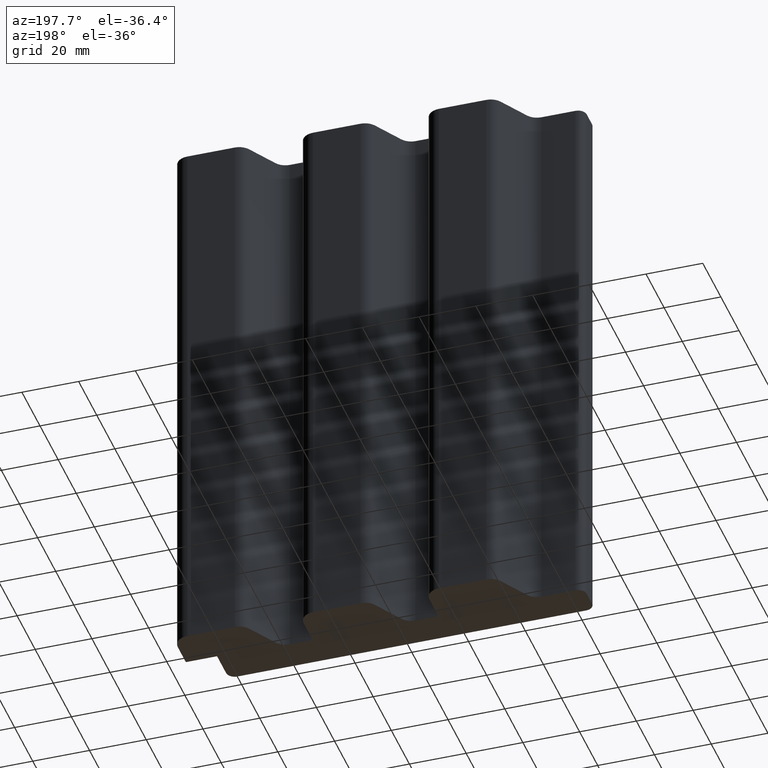
[diagram: clean part render]
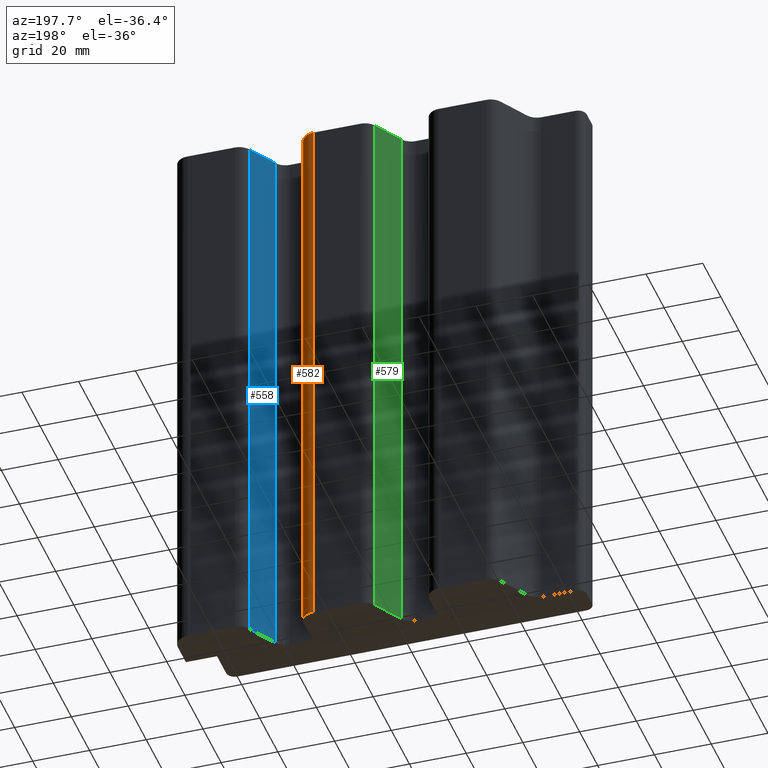
[diagram: same view with three faces highlighted in distinct colors, each labeled with its STEP entity id]
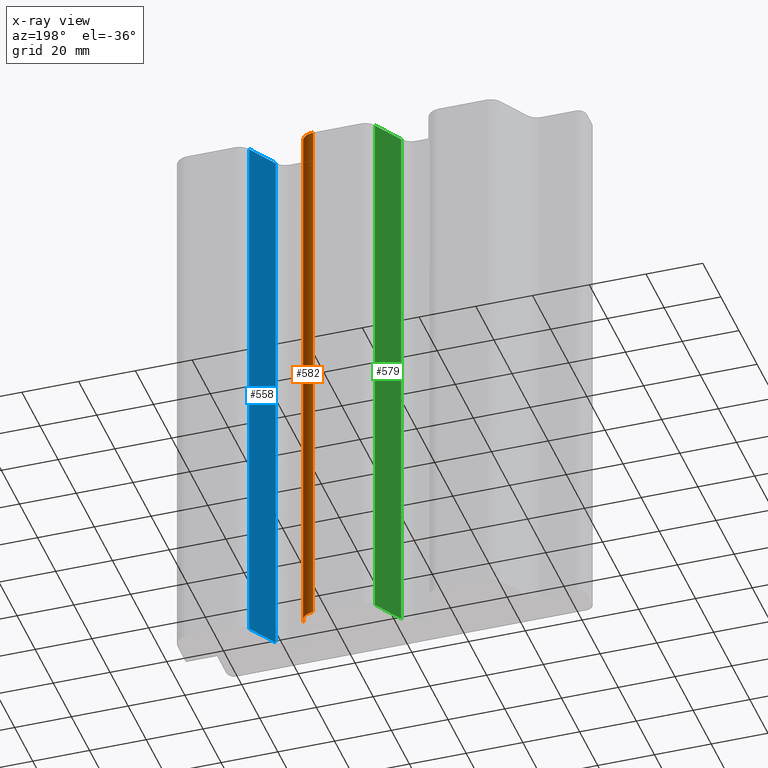
[diagram: x-ray of the same camera — body ghosted, the three highlighted faces saturated]
A machine part, auxiliary view with three faces highlighted in distinct colors.
The next image is the same camera in x-ray (body ghosted, the three faces saturated) — at least one of them is partly hidden behind the body in this view.
Their STEP definitions:

[orange] entity #582 — the highlighted cylindrical surface (edge-blend (fillet) strip) has radius 5 mm, axis along (0, 0, 1).
#58=FACE_OUTER_BOUND('',#88,.T.);
#88=EDGE_LOOP('',(#477,#478,#479,#480));
#146=LINE('',#978,#206);
#147=LINE('',#984,#207);
#206=VECTOR('',#804,10.);
#207=VECTOR('',#811,10.);
#235=CIRCLE('',#649,4.99999999999968);
#236=CIRCLE('',#650,4.99999999999968);
#287=VERTEX_POINT('',#974);
#288=VERTEX_POINT('',#976);
#289=VERTEX_POINT('',#980);
#290=VERTEX_POINT('',#982);
#368=EDGE_CURVE('',#287,#288,#146,.T.);
#369=EDGE_CURVE('',#289,#287,#235,.T.);
#370=EDGE_CURVE('',#290,#288,#236,.T.);
#371=EDGE_CURVE('',#289,#290,#147,.T.);
#477=ORIENTED_EDGE('',*,*,#369,.T.);
#478=ORIENTED_EDGE('',*,*,#368,.T.);
#479=ORIENTED_EDGE('',*,*,#370,.F.);
#480=ORIENTED_EDGE('',*,*,#371,.F.);
#556=CYLINDRICAL_SURFACE('',#648,4.99999999999968);
#582=ADVANCED_FACE('',(#58),#556,.T.);
#648=AXIS2_PLACEMENT_3D('',#979,#805,#806);
#649=AXIS2_PLACEMENT_3D('',#981,#807,#808);
#650=AXIS2_PLACEMENT_3D('',#983,#809,#810);
#804=DIRECTION('',(0.,0.,1.));
#805=DIRECTION('center_axis',(0.,0.,1.));
#806=DIRECTION('ref_axis',(1.,-1.28519417330616E-12,0.));
#807=DIRECTION('center_axis',(0.,0.,1.));
#808=DIRECTION('ref_axis',(1.,-1.28519417330616E-12,0.));
#809=DIRECTION('center_axis',(0.,0.,1.));
#810=DIRECTION('ref_axis',(1.,-1.28519417330616E-12,0.));
#811=DIRECTION('',(0.,0.,1.));
#974=CARTESIAN_POINT('',(26.1666669479332,27.0000000000985,0.));
#976=CARTESIAN_POINT('',(26.1666669479332,27.0000000000985,200.));
#978=CARTESIAN_POINT('',(26.1666669479332,27.0000000000985,0.));
#979=CARTESIAN_POINT('Origin',(26.166666947912,22.0000000000988,0.));
#980=CARTESIAN_POINT('',(31.1666669479117,22.0000000000924,0.));
#981=CARTESIAN_POINT('Origin',(26.166666947912,22.0000000000988,0.));
#982=CARTESIAN_POINT('',(31.1666669479117,22.0000000000924,200.));
#983=CARTESIAN_POINT('Origin',(26.166666947912,22.0000000000988,200.));
#984=CARTESIAN_POINT('',(31.1666669479117,22.0000000000924,0.));

[blue] entity #558 — the highlighted planar face has unit normal (-0.8588, 0.5123, 0).
#15=PLANE('',#604);
#34=FACE_OUTER_BOUND('',#64,.T.);
#64=EDGE_LOOP('',(#381,#382,#383,#384));
#94=LINE('',#834,#154);
#95=LINE('',#837,#155);
#96=LINE('',#839,#156);
#97=LINE('',#840,#157);
#154=VECTOR('',#664,10.);
#155=VECTOR('',#667,10.);
#156=VECTOR('',#668,10.);
#157=VECTOR('',#669,10.);
#238=VERTEX_POINT('',#828);
#240=VERTEX_POINT('',#832);
#241=VERTEX_POINT('',#836);
#242=VERTEX_POINT('',#838);
#296=EDGE_CURVE('',#238,#240,#94,.T.);
#297=EDGE_CURVE('',#241,#238,#95,.T.);
#298=EDGE_CURVE('',#242,#240,#96,.T.);
#299=EDGE_CURVE('',#241,#242,#97,.T.);
#381=ORIENTED_EDGE('',*,*,#297,.T.);
#382=ORIENTED_EDGE('',*,*,#296,.T.);
#383=ORIENTED_EDGE('',*,*,#298,.F.);
#384=ORIENTED_EDGE('',*,*,#299,.F.);
#558=ADVANCED_FACE('',(#34),#15,.T.);
#604=AXIS2_PLACEMENT_3D('',#835,#665,#666);
#664=DIRECTION('',(0.,0.,1.));
#665=DIRECTION('center_axis',(-0.858785385853302,0.512335496569188,0.));
#666=DIRECTION('ref_axis',(-0.512335496569188,-0.858785385853301,0.));
#667=DIRECTION('',(-0.512335496569188,-0.858785385853301,0.));
#668=DIRECTION('',(-0.512335496569188,-0.858785385853301,0.));
#669=DIRECTION('',(0.,0.,1.));
#828=CARTESIAN_POINT('',(43.4605938771717,14.4383225166695,0.));
#832=CARTESIAN_POINT('',(43.4605938771717,14.4383225166695,200.));
#834=CARTESIAN_POINT('',(43.4605938771717,14.4383225166695,0.));
#835=CARTESIAN_POINT('Origin',(49.5000004378532,24.5616774828414,0.));
#836=CARTESIAN_POINT('',(49.5000004378532,24.5616774828414,0.));
#837=CARTESIAN_POINT('',(49.5000004378532,24.5616774828414,0.));
#838=CARTESIAN_POINT('',(49.5000004378532,24.5616774828414,200.));
#839=CARTESIAN_POINT('',(49.5000004378532,24.5616774828414,200.));
#840=CARTESIAN_POINT('',(49.5000004378532,24.5616774828414,0.));

[green] entity #579 — the highlighted planar face has unit normal (-0.8588, 0.5123, 0).
#27=PLANE('',#643);
#55=FACE_OUTER_BOUND('',#85,.T.);
#85=EDGE_LOOP('',(#465,#466,#467,#468));
#139=LINE('',#960,#199);
#140=LINE('',#963,#200);
#141=LINE('',#965,#201);
#142=LINE('',#966,#202);
#199=VECTOR('',#787,10.);
#200=VECTOR('',#790,10.);
#201=VECTOR('',#791,10.);
#202=VECTOR('',#792,10.);
#281=VERTEX_POINT('',#956);
#282=VERTEX_POINT('',#958);
#283=VERTEX_POINT('',#962);
#284=VERTEX_POINT('',#964);
#359=EDGE_CURVE('',#281,#282,#139,.T.);
#360=EDGE_CURVE('',#283,#281,#140,.T.);
#361=EDGE_CURVE('',#284,#282,#141,.T.);
#362=EDGE_CURVE('',#283,#284,#142,.T.);
#465=ORIENTED_EDGE('',*,*,#360,.T.);
#466=ORIENTED_EDGE('',*,*,#359,.T.);
#467=ORIENTED_EDGE('',*,*,#361,.F.);
#468=ORIENTED_EDGE('',*,*,#362,.F.);
#579=ADVANCED_FACE('',(#55),#27,.T.);
#643=AXIS2_PLACEMENT_3D('',#961,#788,#789);
#787=DIRECTION('',(0.,0.,1.));
#788=DIRECTION('center_axis',(-0.858785385853302,0.512335496569186,0.));
#789=DIRECTION('ref_axis',(-0.512335496569186,-0.858785385853303,0.));
#790=DIRECTION('',(-0.512335496569186,-0.858785385853303,0.));
#791=DIRECTION('',(-0.512335496569186,-0.858785385853303,0.));
#792=DIRECTION('',(0.,0.,1.));
#956=CARTESIAN_POINT('',(-0.872739612745183,14.4383225168681,0.));
#958=CARTESIAN_POINT('',(-0.872739612745179,14.4383225168681,200.));
#960=CARTESIAN_POINT('',(-0.872739612745183,14.4383225168681,0.));
#961=CARTESIAN_POINT('Origin',(5.16666691603756,24.5616774295708,0.));
#962=CARTESIAN_POINT('',(5.16666691603756,24.5616774295708,0.));
#963=CARTESIAN_POINT('',(5.16666691603756,24.5616774295708,0.));
#964=CARTESIAN_POINT('',(5.16666691603756,24.5616774295708,200.));
#965=CARTESIAN_POINT('',(5.16666691603756,24.5616774295708,200.));
#966=CARTESIAN_POINT('',(5.16666691603756,24.5616774295708,0.));